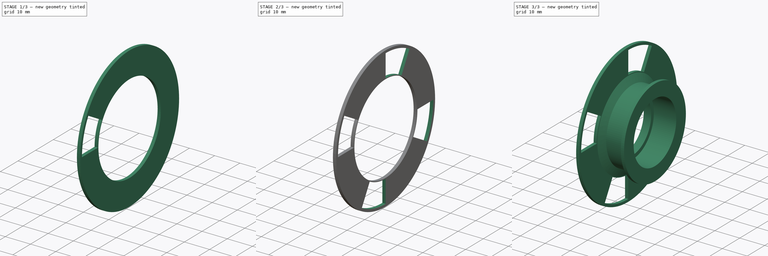
[diagram: build sequence overview — one tinted view per stage of 3, left to right]
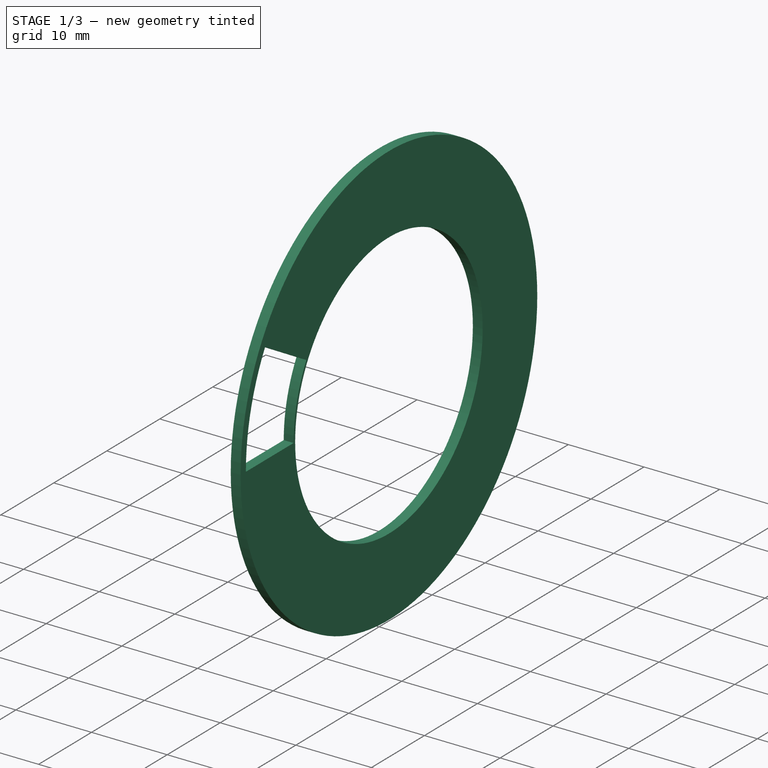
[diagram: stage 1 of 3 — iso view after this stage's code; geometry added in this stage tinted green]
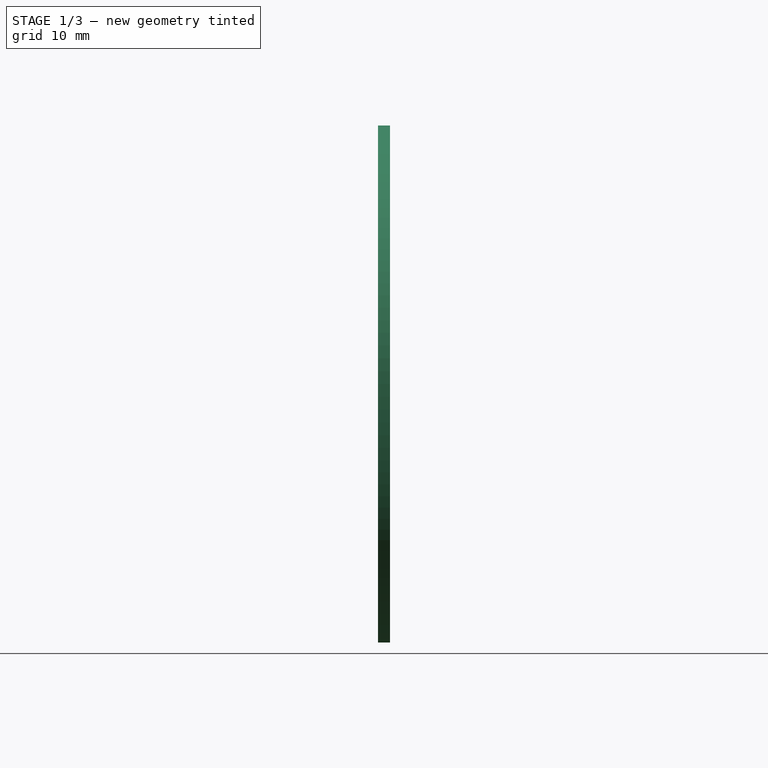
[diagram: stage 1 of 3 — front view after this stage's code; geometry added in this stage tinted green]
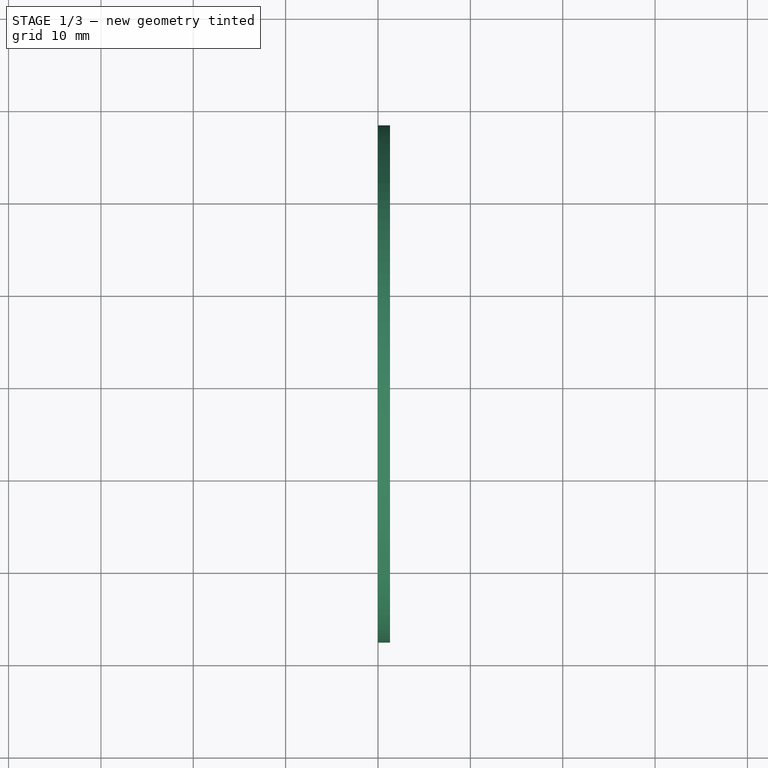
[diagram: stage 1 of 3 — top view after this stage's code; geometry added in this stage tinted green]
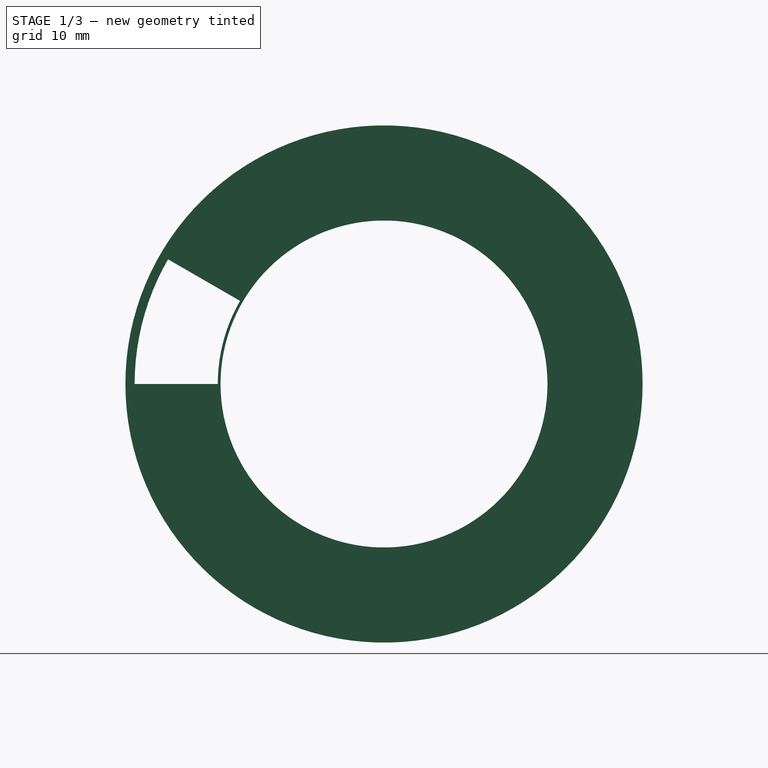
[diagram: stage 1 of 3 — right view after this stage's code; geometry added in this stage tinted green]
FCSTD DOCUMENT  (FreeCAD 0.17R13522 (Git))
Label: AnelRolamentoContador
License: All rights reserved
LicenseURL: http://en.wikipedia.org/wiki/All_rights_reserved
objects: Sketcher::SketchObject×3, PartDesign::Body×2, PartDesign::Revolution×1, PartDesign::Pad×1, PartDesign::Pocket×1, PartDesign::PolarPattern×1, Part::MultiFuse×1
note: 13 computed .brp shape members not serialized (recipe doc carries the construction recipe); baked Part::Feature solids carry a one-line shape summary decoded from their .brp

FEATURE [PartDesign::Body] Body
  Group = -> [Sketch,Revolution]
  Origin = -> Origin
  Tip = -> Revolution
FEATURE [Sketcher::SketchObject] Sketch001
  MapMode = 5
  Placement = pos=(0,0,0) rot=(0.57735,0.57735,0.57735;2.0944rad)
  Support = -> [YZ_Plane001]
  sketch-geometry (2):
    g0: Circle CenterX=0 CenterY=0 CenterZ=0 NormalX=0 NormalY=0 NormalZ=1 AngleXU=0 Radius=17.7
    g1: Circle CenterX=0 CenterY=0 CenterZ=0 NormalX=0 NormalY=0 NormalZ=1 AngleXU=0 Radius=28
  constraints (4):
    c: Radius(g0) = 17.7
    c: Coincident(g0,g-1)
    c: Coincident(g0,g1)
    c: Radius(g1) = 28
FEATURE [PartDesign::Pad] Pad
  Length = 1.3
  Length2 = 100
  Placement = pos=(0,0,0) rot=(0.57735,0.57735,0.57735;2.0944rad)
  Profile = -> Sketch001
  Type = 0
FEATURE [Sketcher::SketchObject] Sketch002
  MapMode = 5
  Placement = pos=(1.3,0,0) rot=(0.57735,0.57735,0.57735;2.0944rad)
  Support = -> [Pad]
  sketch-geometry (4):
    g0: ArcOfCircle CenterX=0 CenterY=0 CenterZ=0 NormalX=0 NormalY=0 NormalZ=1 AngleXU=0 Radius=27 StartAngle=2.61799 EndAngle=3.14159
    g1: ArcOfCircle CenterX=0 CenterY=0 CenterZ=0 NormalX=0 NormalY=0 NormalZ=1 AngleXU=0 Radius=18 StartAngle=2.61799 EndAngle=3.14159
    g2: LineSegment StartX=-23.3827 StartY=13.5 StartZ=0 EndX=-15.5885 EndY=9 EndZ=0
    g3: LineSegment StartX=-27 StartY=-6e-12 StartZ=0 EndX=-18 EndY=-4e-12 EndZ=0
  constraints (12):
    c: Coincident(g0,g1)
    c: Coincident(g0,g-1)
    c: Radius(g1) = 18
    c: Radius(g0) = 27
    c: Angle(g1) = 0.523599
    c: Angle(g0) = 0.523599
    c: PointOnObject(g0,g-1)
    c: PointOnObject(g1,g-1)
    c: Coincident(g1,g3)
    c: Coincident(g0,g3)
    c: Coincident(g0,g2)
    c: Coincident(g1,g2)
FEATURE [PartDesign::Pocket] Pocket
  BaseFeature = -> Pad
  Length = 5
  Length2 = 100
  Placement = pos=(0,0,0) rot=(0.57735,0.57735,0.57735;2.0944rad)
  Profile = -> Sketch002
  Type = 1
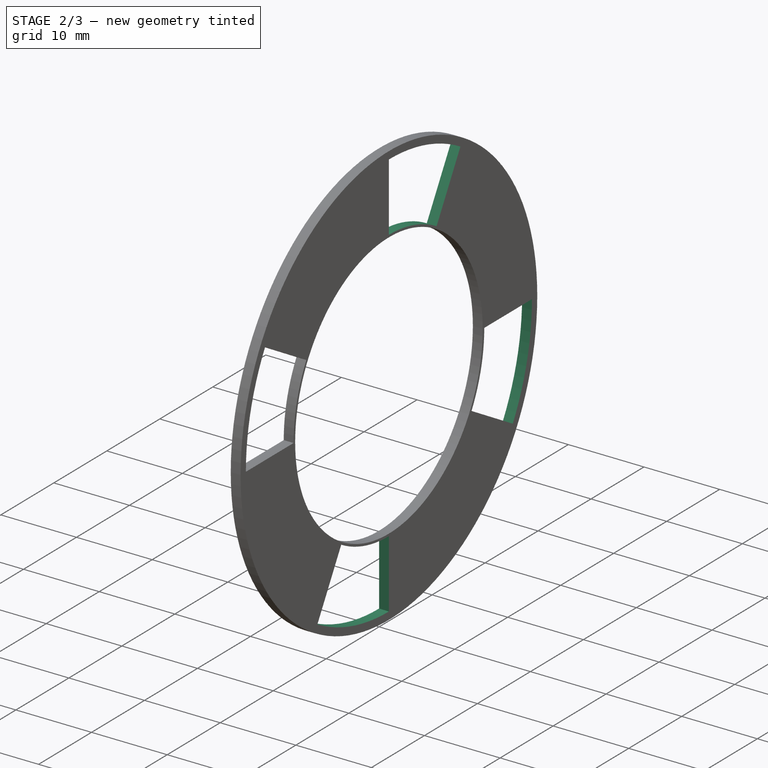
[diagram: stage 2 of 3 — iso view after this stage's code; geometry added in this stage tinted green]
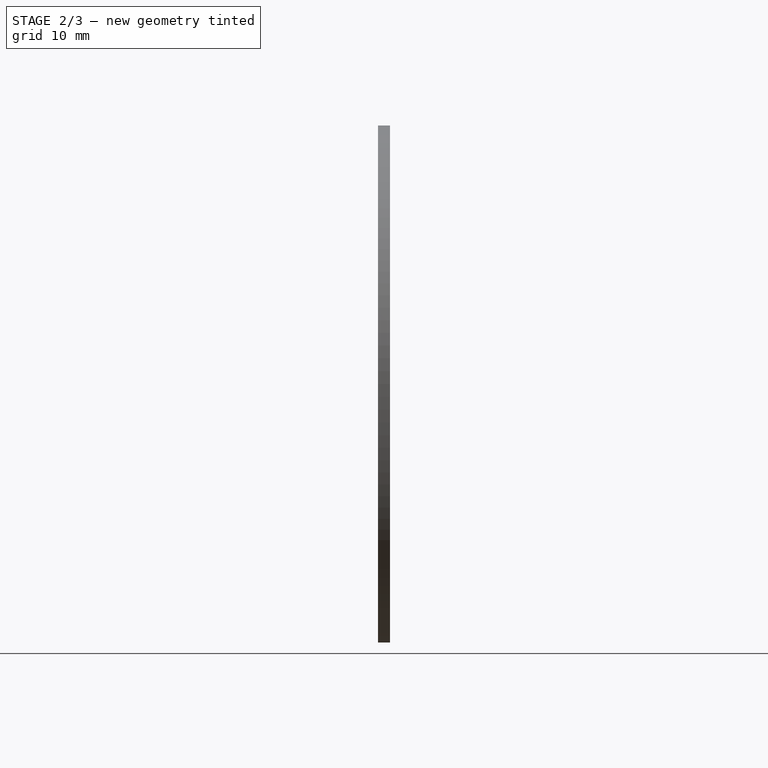
[diagram: stage 2 of 3 — front view after this stage's code; geometry added in this stage tinted green]
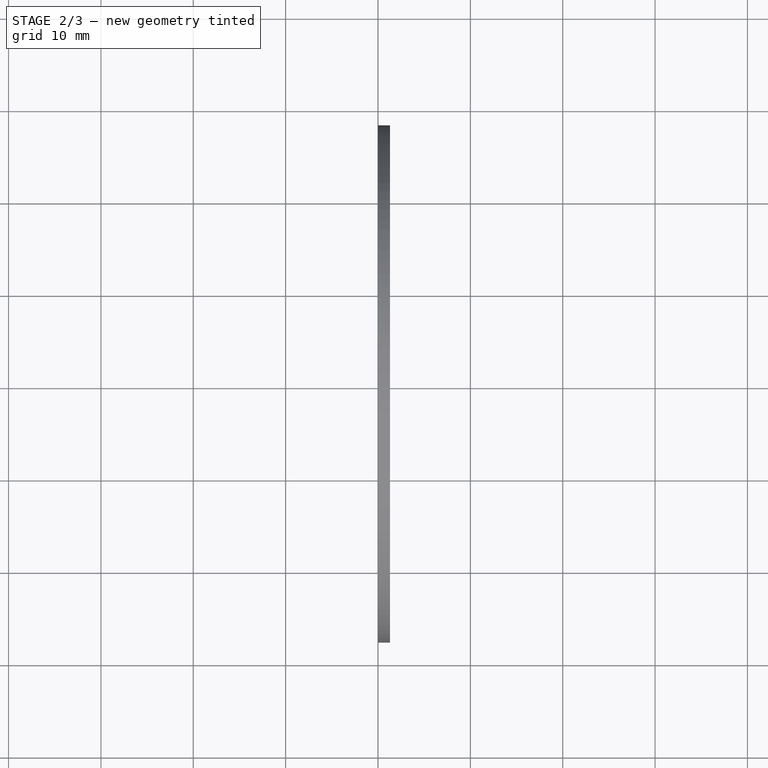
[diagram: stage 2 of 3 — top view after this stage's code; geometry added in this stage tinted green]
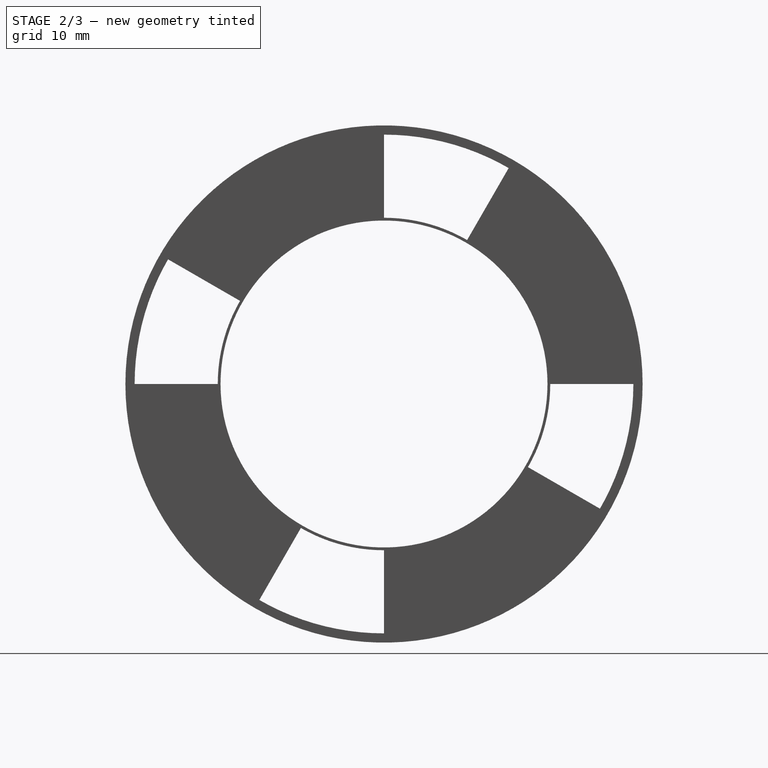
[diagram: stage 2 of 3 — right view after this stage's code; geometry added in this stage tinted green]
FEATURE [PartDesign::PolarPattern] PolarPattern
  Angle = 360
  Axis = -> X_Axis001
  BaseFeature = -> Pocket
  Occurrences = 4
  Originals = -> [Pocket]
  Placement = pos=(0,0,0) rot=(0.57735,0.57735,0.57735;2.0944rad)
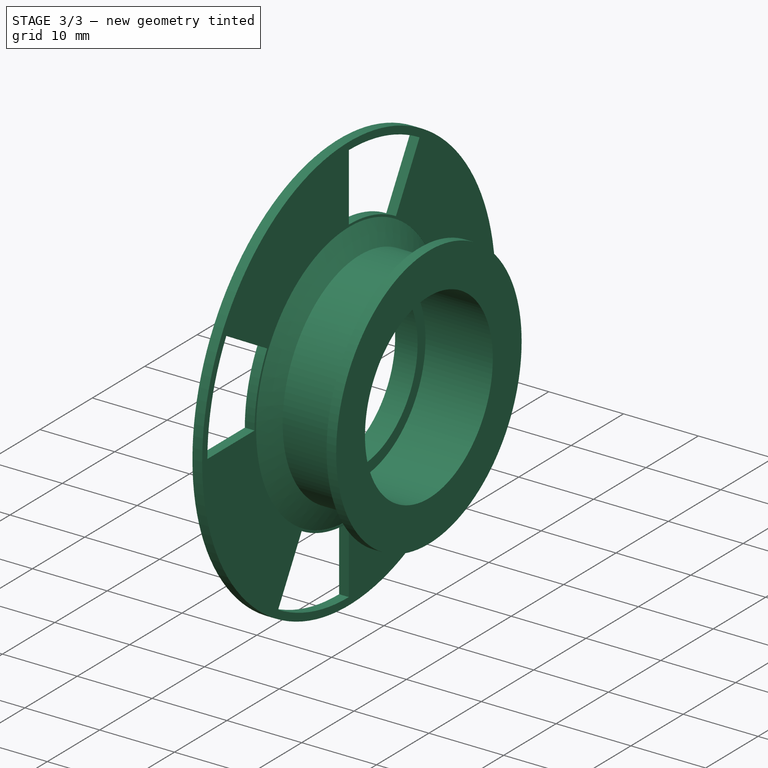
[diagram: stage 3 of 3 — iso view after this stage's code; geometry added in this stage tinted green]
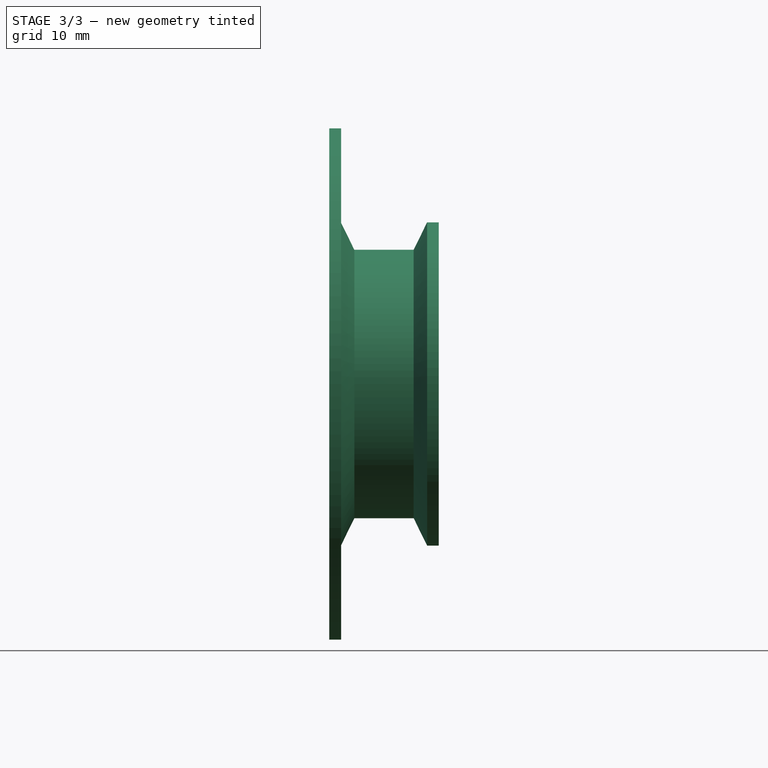
[diagram: stage 3 of 3 — front view after this stage's code; geometry added in this stage tinted green]
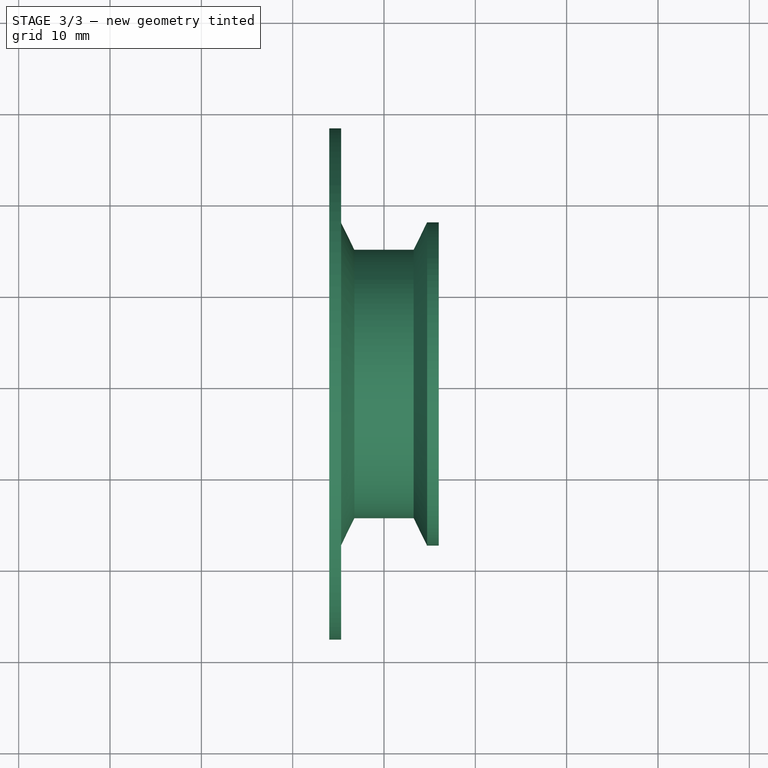
[diagram: stage 3 of 3 — top view after this stage's code; geometry added in this stage tinted green]
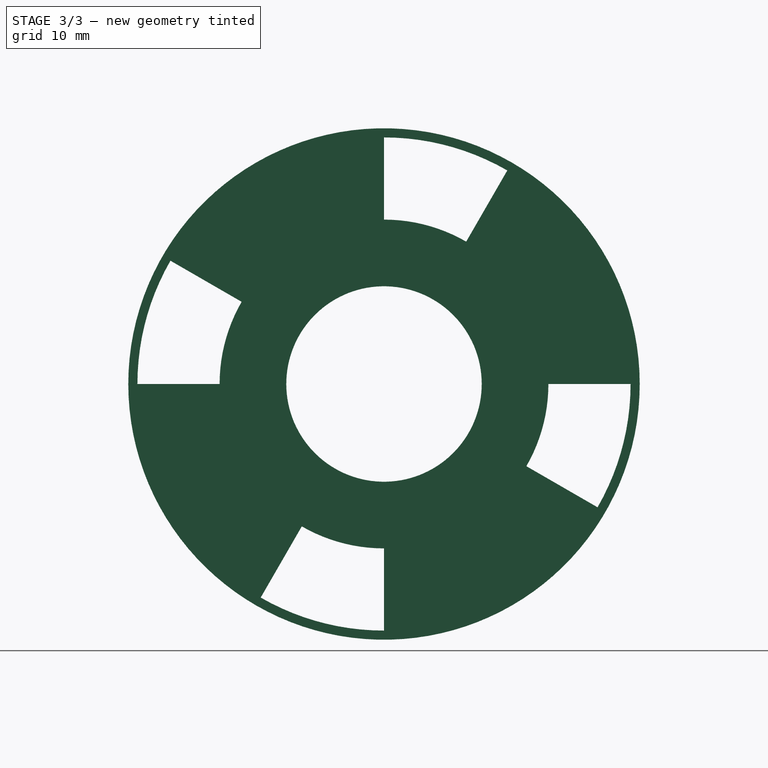
[diagram: stage 3 of 3 — right view after this stage's code; geometry added in this stage tinted green]
FEATURE [Sketcher::SketchObject] Sketch
  MapMode = 5
  Support = -> [XY_Plane]
  sketch-geometry (11):
    g0: LineSegment StartX=-6 StartY=12.2 StartZ=0 EndX=-6 EndY=17.7 EndZ=0
    g1: LineSegment StartX=-6 StartY=17.7 StartZ=0 EndX=-4.71774 EndY=17.7 EndZ=0
    g2: LineSegment StartX=4.71774 StartY=17.7 StartZ=0 EndX=6 EndY=17.7 EndZ=0
    g3: LineSegment StartX=6 StartY=17.7 StartZ=0 EndX=6 EndY=12.2 EndZ=0
    g4: LineSegment StartX=6 StartY=12.2 StartZ=0 EndX=-3 EndY=12.2 EndZ=0
    g5: LineSegment StartX=-4.71774 StartY=17.7 StartZ=0 EndX=-3.25 EndY=14.7 EndZ=0
    g6: LineSegment StartX=-3.25 StartY=14.7 StartZ=0 EndX=3.25 EndY=14.7 EndZ=0
    g7: LineSegment StartX=3.25 StartY=14.7 StartZ=0 EndX=4.71774 EndY=17.7 EndZ=0
    g8: LineSegment StartX=-3 StartY=12.2 StartZ=0 EndX=-3 EndY=10.7 EndZ=0
    g9: LineSegment StartX=-3 StartY=10.7 StartZ=0 EndX=-6 EndY=10.7 EndZ=0
    g10: LineSegment StartX=-6 StartY=10.7 StartZ=0 EndX=-6 EndY=12.2 EndZ=0
  constraints (35):
    c: Coincident(g0,g1)
    c: Coincident(g2,g3)
    c: Coincident(g3,g4)
    c: Horizontal(g4)
    c: Horizontal(g1)
    c: Horizontal(g2)
    c: Vertical(g0)
    c: Vertical(g3)
    c: DistanceY(g-1,g0) = 12.2
    c: Symmetric(g0,g3,g-2)
    c: DistanceX(g0,g4) = 12
    c: Equal(g3,g0)
    c: Coincident(g5,g6)
    c: Coincident(g6,g7)
    c: Coincident(g2,g7)
    c: Coincident(g1,g5)
    c: Horizontal(g6)
    c: DistanceX(g6,g6) = 6.5
    c: Symmetric(g5,g6,g-2)
    c: Equal(g1,g2)
    c: DistanceY(g6,g2) = 3
    c: DistanceY(g3,g6) = 2.5
    c: DistanceY(g0,g0) = 5.5
    c: DistanceY(g-1,g2) = 17.7
    c: Coincident(g8,g9)
    c: Coincident(g9,g10)
    c: Horizontal(g9)
    c: Vertical(g8)
    c: Vertical(g10)
    c: DistanceX(g9,g9) = 3
    c: DistanceY(g10,g10) = 1.5
    c: Equal(g10,g8)
    c: Coincident(g0,g10)
    c: PointOnObject(g4,g8)
    c: DistanceY(g-1,g8) = 10.7
FEATURE [PartDesign::Revolution] Revolution
  Angle = 360
  Axis = (1,0,0)
  Base = (0,0,0)
  Profile = -> Sketch
  ReferenceAxis = -> Sketch [H_Axis]
FEATURE [PartDesign::Body] Body001
  Group = -> [Sketch001,Pad,Sketch002,Pocket,PolarPattern]
  Origin = -> Origin001
  Placement = pos=(-6,0,0) rot=(0,0,1;0rad)
  Tip = -> PolarPattern
FEATURE [Part::MultiFuse] Fusion
  Shapes = -> [Body,Body001]
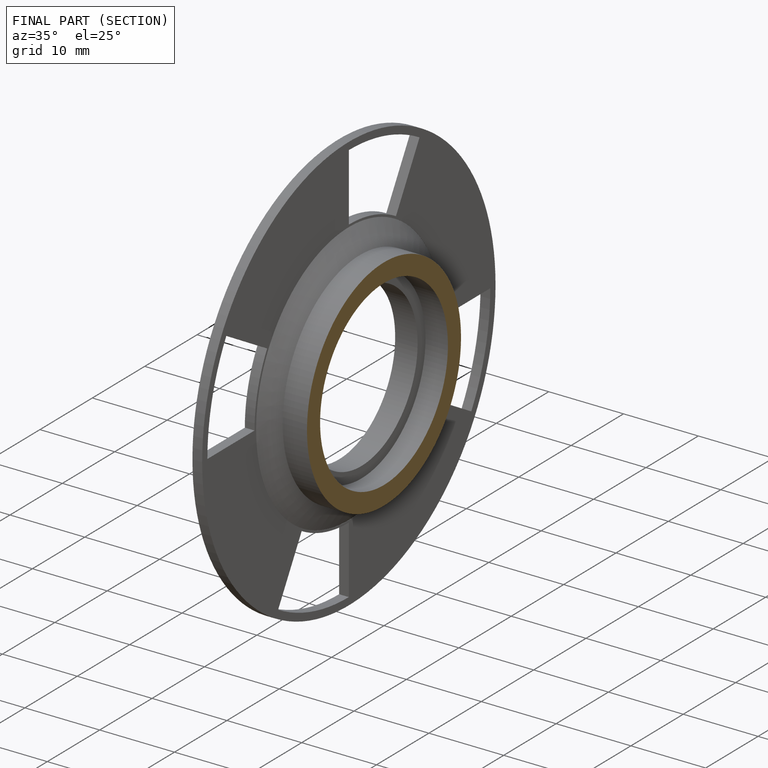
[diagram: finished part — half-section view (interior)]
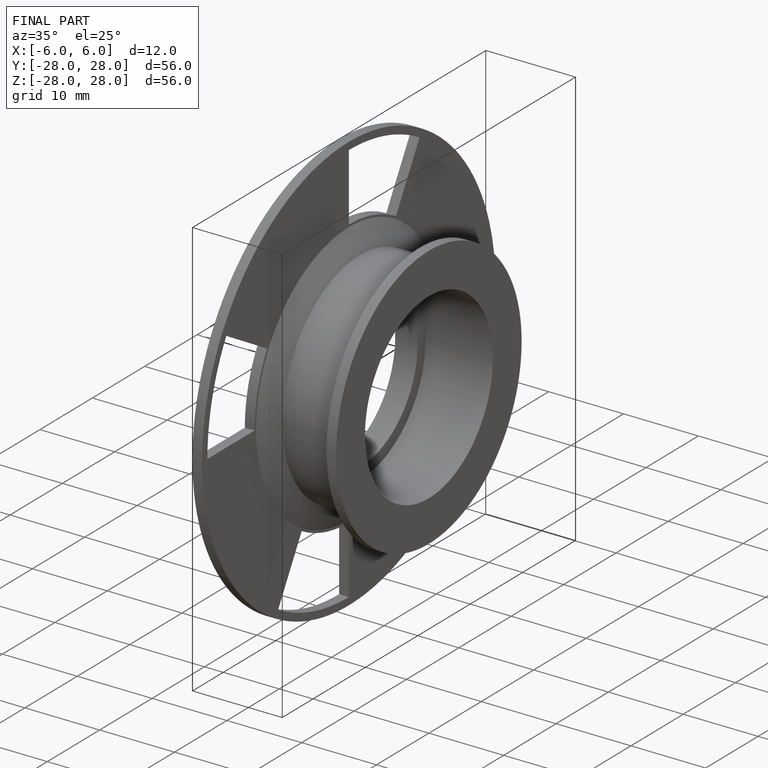
[diagram: finished part — iso view with bounding-box wireframe]
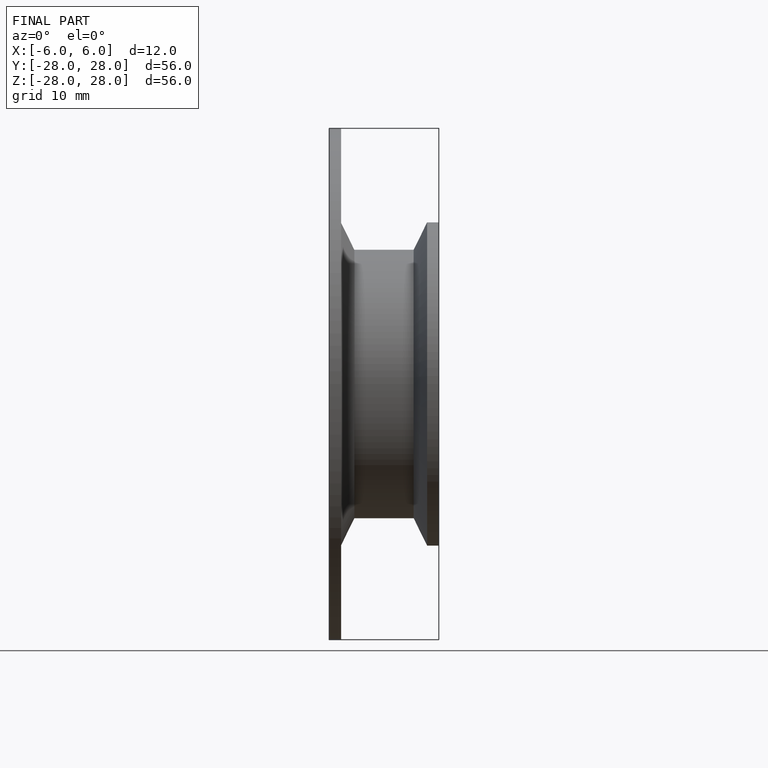
[diagram: finished part — front view with bounding-box wireframe]
